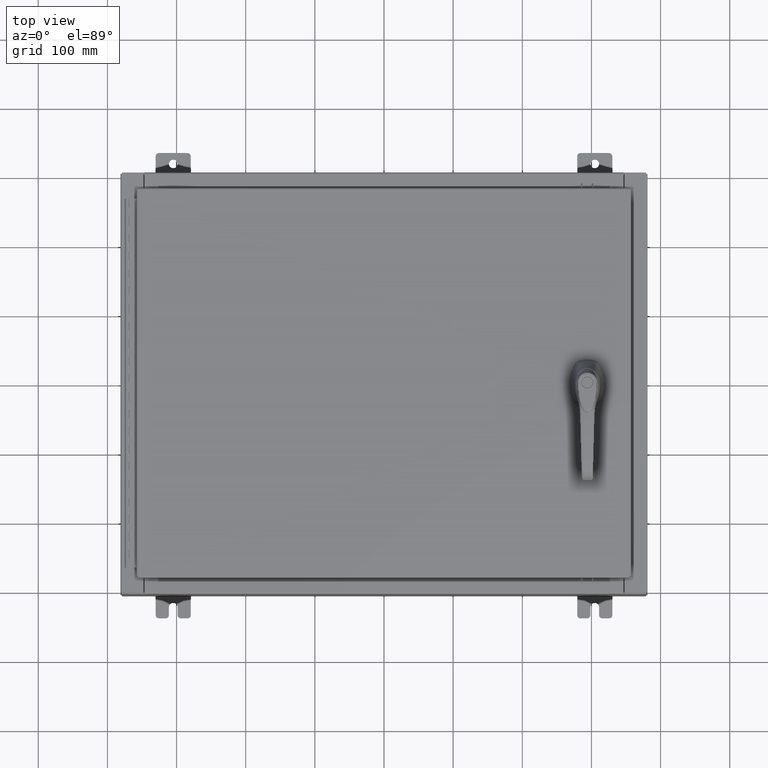
[diagram: clean part render]
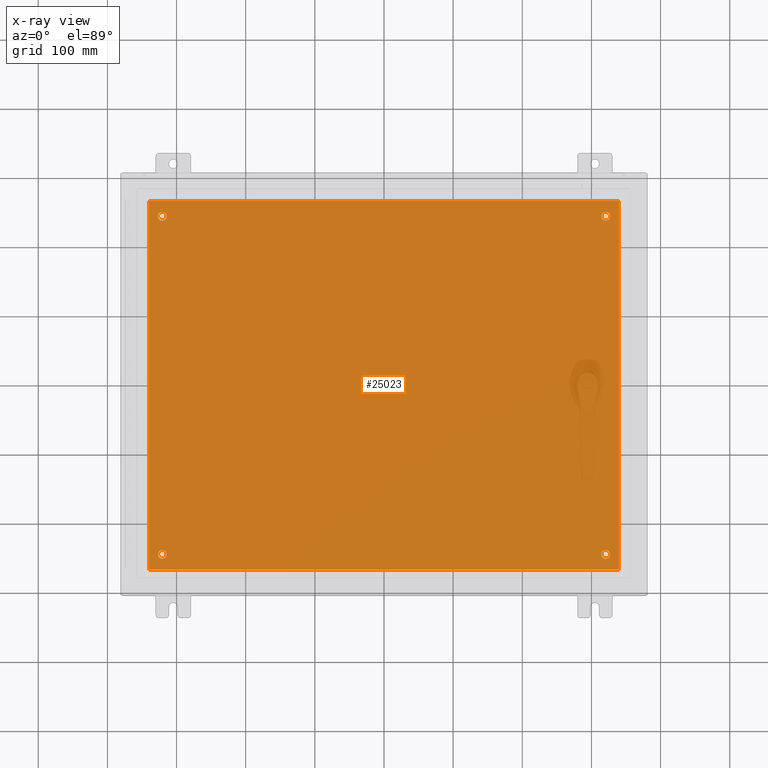
[diagram: x-ray — body ghosted, one internal face saturated and labeled with its STEP entity id]
A machine part, top view, then the same camera in x-ray: the body is ghosted and one INTERNAL B-rep face — a face not visible from any outside direction — is saturated and labeled: STEP entity #25023.
In plain terms, the highlighted planar face has unit normal (0, 0, -1).
Its self-contained STEP definition (entity closure, byte-faithful):
#515 = CARTESIAN_POINT ( 'NONE',  ( -13.38299999999999900, 10.50000000000000200, -0.1040000000000041900 ) ) ;
#989 = LINE ( 'NONE', #94139, #67460 ) ;
#2789 = CARTESIAN_POINT ( 'NONE',  ( 12.62499999999999800, -9.625000000000001800, -0.1039999999999999800 ) ) ;
#4382 = DIRECTION ( 'NONE',  ( 1.000000000000000000, 0.0000000000000000000, 0.0000000000000000000 ) ) ;
#7434 = FACE_BOUND ( 'NONE', #93668, .T. ) ;
#7976 = CARTESIAN_POINT ( 'NONE',  ( -13.38299999999999900, 10.50000000000000400, -0.1040000000000041900 ) ) ;
#8098 = CARTESIAN_POINT ( 'NONE',  ( -12.62499999999999800, -9.625000000000001800, -0.1039999999999999800 ) ) ;
#10805 = DIRECTION ( 'NONE',  ( -0.0000000000000000000, -0.0000000000000000000, 1.000000000000000000 ) ) ;
#10952 = EDGE_CURVE ( 'NONE', #96157, #82889, #91389, .T. ) ;
#11117 = VECTOR ( 'NONE', #4382, 39.37007874015748100 ) ;
#11505 = DIRECTION ( 'NONE',  ( -1.000000000000000000, 0.0000000000000000000, 0.0000000000000000000 ) ) ;
#14552 = CIRCLE ( 'NONE', #80758, 0.2499999999999987000 ) ;
#15095 = CARTESIAN_POINT ( 'NONE',  ( -12.87499999999999600, 9.625000000000001800, -0.1039999999999999800 ) ) ;
#15627 = VECTOR ( 'NONE', #94744, 39.37007874015748100 ) ;
#16829 = DIRECTION ( 'NONE',  ( -1.000000000000000000, 0.0000000000000000000, 0.0000000000000000000 ) ) ;
#17722 = ORIENTED_EDGE ( 'NONE', *, *, #81293, .T. ) ;
#18593 = DIRECTION ( 'NONE',  ( -0.0000000000000000000, -0.0000000000000000000, 1.000000000000000000 ) ) ;
#19178 = CARTESIAN_POINT ( 'NONE',  ( 13.38300000000000300, -10.50000000000000200, -0.1040000000000009100 ) ) ;
#19646 = VERTEX_POINT ( 'NONE', #20872 ) ;
#20872 = CARTESIAN_POINT ( 'NONE',  ( 12.37499999999999800, -9.625000000000001800, -0.1039999999999999800 ) ) ;
#23183 = CARTESIAN_POINT ( 'NONE',  ( -12.62499999999999800, 9.625000000000001800, -0.1039999999999999800 ) ) ;
#23203 = CIRCLE ( 'NONE', #49714, 0.2499999999999987000 ) ;
#23561 = ORIENTED_EDGE ( 'NONE', *, *, #10952, .T. ) ;
#24162 = CARTESIAN_POINT ( 'NONE',  ( -12.37499999999999800, 9.625000000000001800, -0.1039999999999999800 ) ) ;
#25023 = ADVANCED_FACE ( 'NONE', ( #96925, #7434, #33235, #73893, #30518 ), #42178, .T. ) ;
#25644 = VERTEX_POINT ( 'NONE', #31128 ) ;
#26158 = CIRCLE ( 'NONE', #78254, 0.2499999999999987000 ) ;
#27546 = EDGE_CURVE ( 'NONE', #25644, #19646, #26158, .T. ) ;
#28373 = CARTESIAN_POINT ( 'NONE',  ( 12.62499999999999800, 9.625000000000001800, -0.1039999999999999800 ) ) ;
#30518 = FACE_OUTER_BOUND ( 'NONE', #110571, .T. ) ;
#30614 = CARTESIAN_POINT ( 'NONE',  ( 13.38300000000000400, 10.50000000000000200, -0.1039999999999999800 ) ) ;
#31128 = CARTESIAN_POINT ( 'NONE',  ( 12.87499999999999600, -9.625000000000001800, -0.1039999999999999800 ) ) ;
#31806 = CARTESIAN_POINT ( 'NONE',  ( -12.62499999999999800, 9.625000000000001800, -0.1039999999999999800 ) ) ;
#31891 = DIRECTION ( 'NONE',  ( -1.000000000000000000, 0.0000000000000000000, 0.0000000000000000000 ) ) ;
#33064 = EDGE_CURVE ( 'NONE', #43956, #53833, #14552, .T. ) ;
#33116 = ORIENTED_EDGE ( 'NONE', *, *, #52904, .F. ) ;
#33235 = FACE_BOUND ( 'NONE', #70421, .T. ) ;
#33843 = ORIENTED_EDGE ( 'NONE', *, *, #36815, .T. ) ;
#36815 = EDGE_CURVE ( 'NONE', #53833, #43956, #85985, .T. ) ;
#37031 = DIRECTION ( 'NONE',  ( -1.000000000000000000, 0.0000000000000000000, 0.0000000000000000000 ) ) ;
#39228 = AXIS2_PLACEMENT_3D ( 'NONE', #39487, #100126, #48201 ) ;
#39487 = CARTESIAN_POINT ( 'NONE',  ( 12.62499999999999800, 9.625000000000001800, -0.1039999999999999800 ) ) ;
#40488 = DIRECTION ( 'NONE',  ( -1.000000000000000000, 0.0000000000000000000, 0.0000000000000000000 ) ) ;
#42178 = PLANE ( 'NONE',  #79573 ) ;
#42759 = EDGE_CURVE ( 'NONE', #93357, #90012, #96191, .T. ) ;
#43956 = VERTEX_POINT ( 'NONE', #24162 ) ;
#44908 = CARTESIAN_POINT ( 'NONE',  ( 13.38300000000000100, -10.50000000000000000, -0.1039999999999999800 ) ) ;
#48201 = DIRECTION ( 'NONE',  ( -1.000000000000000000, 0.0000000000000000000, 0.0000000000000000000 ) ) ;
#49199 = VERTEX_POINT ( 'NONE', #515 ) ;
#49714 = AXIS2_PLACEMENT_3D ( 'NONE', #70519, #18593, #79210 ) ;
#50885 = DIRECTION ( 'NONE',  ( -1.000000000000000000, 0.0000000000000000000, -0.0000000000000000000 ) ) ;
#51500 = ORIENTED_EDGE ( 'NONE', *, *, #76898, .F. ) ;
#52904 = EDGE_CURVE ( 'NONE', #80083, #70748, #80245, .T. ) ;
#53833 = VERTEX_POINT ( 'NONE', #15095 ) ;
#56282 = CARTESIAN_POINT ( 'NONE',  ( -13.49999999999999500, -10.50000000000000000, -0.1039999999999999800 ) ) ;
#57037 = CIRCLE ( 'NONE', #57182, 0.2499999999999987000 ) ;
#57182 = AXIS2_PLACEMENT_3D ( 'NONE', #62695, #10805, #71441 ) ;
#59304 = ORIENTED_EDGE ( 'NONE', *, *, #27546, .T. ) ;
#60002 = DIRECTION ( 'NONE',  ( -1.000000000000000000, -0.0000000000000000000, -0.0000000000000000000 ) ) ;
#60832 = ORIENTED_EDGE ( 'NONE', *, *, #91792, .T. ) ;
#61229 = EDGE_CURVE ( 'NONE', #49199, #80083, #87472, .T. ) ;
#61905 = EDGE_CURVE ( 'NONE', #70748, #100337, #69764, .T. ) ;
#62695 = CARTESIAN_POINT ( 'NONE',  ( 12.62499999999999800, -9.625000000000001800, -0.1039999999999999800 ) ) ;
#63400 = DIRECTION ( 'NONE',  ( -0.0000000000000000000, -0.0000000000000000000, 1.000000000000000000 ) ) ;
#67062 = VECTOR ( 'NONE', #71098, 39.37007874015748100 ) ;
#67460 = VECTOR ( 'NONE', #60002, 39.37007874015748100 ) ;
#67625 = ORIENTED_EDGE ( 'NONE', *, *, #61229, .F. ) ;
#68738 = DIRECTION ( 'NONE',  ( -0.0000000000000000000, -0.0000000000000000000, 1.000000000000000000 ) ) ;
#69764 = LINE ( 'NONE', #19178, #67062 ) ;
#70414 = CARTESIAN_POINT ( 'NONE',  ( 12.37499999999999800, 9.625000000000001800, -0.1039999999999999800 ) ) ;
#70421 = EDGE_LOOP ( 'NONE', ( #17722, #107509 ) ) ;
#70519 = CARTESIAN_POINT ( 'NONE',  ( -12.62499999999999800, -9.625000000000001800, -0.1039999999999999800 ) ) ;
#70748 = VERTEX_POINT ( 'NONE', #44908 ) ;
#70912 = CARTESIAN_POINT ( 'NONE',  ( -13.38299999999999900, -10.50000000000000000, -0.1040000000000041900 ) ) ;
#71098 = DIRECTION ( 'NONE',  ( 0.0000000000000000000, 1.000000000000000000, 0.0000000000000000000 ) ) ;
#71441 = DIRECTION ( 'NONE',  ( -1.000000000000000000, 0.0000000000000000000, 0.0000000000000000000 ) ) ;
#71516 = EDGE_CURVE ( 'NONE', #82889, #96157, #23203, .T. ) ;
#73893 = FACE_BOUND ( 'NONE', #89847, .T. ) ;
#74768 = ORIENTED_EDGE ( 'NONE', *, *, #71516, .T. ) ;
#76810 = AXIS2_PLACEMENT_3D ( 'NONE', #8098, #68738, #16829 ) ;
#76898 = EDGE_CURVE ( 'NONE', #100337, #49199, #989, .T. ) ;
#76958 = CIRCLE ( 'NONE', #39228, 0.2499999999999987000 ) ;
#78254 = AXIS2_PLACEMENT_3D ( 'NONE', #2789, #63400, #11505 ) ;
#79210 = DIRECTION ( 'NONE',  ( -1.000000000000000000, 0.0000000000000000000, 0.0000000000000000000 ) ) ;
#79573 = AXIS2_PLACEMENT_3D ( 'NONE', #85402, #102826, #50885 ) ;
#79932 = CARTESIAN_POINT ( 'NONE',  ( -12.37499999999999800, -9.625000000000001800, -0.1039999999999999800 ) ) ;
#80083 = VERTEX_POINT ( 'NONE', #70912 ) ;
#80245 = LINE ( 'NONE', #56282, #11117 ) ;
#80758 = AXIS2_PLACEMENT_3D ( 'NONE', #31806, #92425, #40488 ) ;
#81293 = EDGE_CURVE ( 'NONE', #90012, #93357, #76958, .T. ) ;
#82889 = VERTEX_POINT ( 'NONE', #79932 ) ;
#83278 = CARTESIAN_POINT ( 'NONE',  ( 12.87499999999999600, 9.625000000000001800, -0.1039999999999999800 ) ) ;
#83780 = DIRECTION ( 'NONE',  ( -0.0000000000000000000, -0.0000000000000000000, 1.000000000000000000 ) ) ;
#83985 = ORIENTED_EDGE ( 'NONE', *, *, #33064, .T. ) ;
#85402 = CARTESIAN_POINT ( 'NONE',  ( 0.0000000000000000000, 0.0000000000000000000, -0.1039999999999999800 ) ) ;
#85985 = CIRCLE ( 'NONE', #109971, 0.2499999999999987000 ) ;
#87472 = LINE ( 'NONE', #7976, #15627 ) ;
#88938 = DIRECTION ( 'NONE',  ( -0.0000000000000000000, -0.0000000000000000000, 1.000000000000000000 ) ) ;
#89847 = EDGE_LOOP ( 'NONE', ( #83985, #33843 ) ) ;
#90012 = VERTEX_POINT ( 'NONE', #83278 ) ;
#91297 = EDGE_LOOP ( 'NONE', ( #74768, #23561 ) ) ;
#91371 = AXIS2_PLACEMENT_3D ( 'NONE', #28373, #88938, #37031 ) ;
#91389 = CIRCLE ( 'NONE', #76810, 0.2499999999999987000 ) ;
#91792 = EDGE_CURVE ( 'NONE', #19646, #25644, #57037, .T. ) ;
#92425 = DIRECTION ( 'NONE',  ( -0.0000000000000000000, -0.0000000000000000000, 1.000000000000000000 ) ) ;
#93357 = VERTEX_POINT ( 'NONE', #70414 ) ;
#93668 = EDGE_LOOP ( 'NONE', ( #59304, #60832 ) ) ;
#93785 = ORIENTED_EDGE ( 'NONE', *, *, #61905, .F. ) ;
#94139 = CARTESIAN_POINT ( 'NONE',  ( -13.50000000000000000, 10.50000000000000200, -0.1039999999999999800 ) ) ;
#94744 = DIRECTION ( 'NONE',  ( 0.0000000000000000000, -1.000000000000000000, 0.0000000000000000000 ) ) ;
#96157 = VERTEX_POINT ( 'NONE', #107190 ) ;
#96191 = CIRCLE ( 'NONE', #91371, 0.2499999999999987000 ) ;
#96925 = FACE_BOUND ( 'NONE', #91297, .T. ) ;
#100126 = DIRECTION ( 'NONE',  ( -0.0000000000000000000, -0.0000000000000000000, 1.000000000000000000 ) ) ;
#100337 = VERTEX_POINT ( 'NONE', #30614 ) ;
#102826 = DIRECTION ( 'NONE',  ( 0.0000000000000000000, 0.0000000000000000000, -1.000000000000000000 ) ) ;
#107190 = CARTESIAN_POINT ( 'NONE',  ( -12.87499999999999600, -9.625000000000001800, -0.1039999999999999800 ) ) ;
#107509 = ORIENTED_EDGE ( 'NONE', *, *, #42759, .T. ) ;
#109971 = AXIS2_PLACEMENT_3D ( 'NONE', #23183, #83780, #31891 ) ;
#110571 = EDGE_LOOP ( 'NONE', ( #33116, #67625, #51500, #93785 ) ) ;